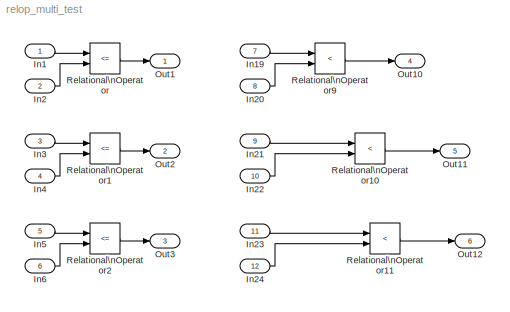
MODEL relop_multi_test
KIND model
BLOCK [Inport] In1
  IconDisplay = Port number
  OutDataTypeStr = double
  PortDimensions = 3
  SID = 1
BLOCK [Inport] In19
  IconDisplay = Port number
  OutDataTypeStr = double
  Port = 7
  PortDimensions = [2 3]
  SID = 7
BLOCK [Inport] In2
  IconDisplay = Port number
  OutDataTypeStr = double
  Port = 2
  PortDimensions = 3
  SID = 2
BLOCK [Inport] In20
  IconDisplay = Port number
  OutDataTypeStr = double
  Port = 8
  PortDimensions = 1
  SID = 8
BLOCK [Inport] In21
  IconDisplay = Port number
  OutDataTypeStr = int8
  Port = 9
  PortDimensions = 1
  SID = 9
BLOCK [Inport] In22
  IconDisplay = Port number
  OutDataTypeStr = int8
  Port = 10
  PortDimensions = [2 3]
  SID = 10
BLOCK [Inport] In23
  IconDisplay = Port number
  OutDataTypeStr = boolean
  Port = 11
  PortDimensions = [2 3]
  SID = 11
BLOCK [Inport] In24
  IconDisplay = Port number
  OutDataTypeStr = boolean
  Port = 12
  PortDimensions = [2 3]
  SID = 12
BLOCK [Inport] In3
  IconDisplay = Port number
  OutDataTypeStr = int8
  Port = 3
  PortDimensions = 3
  SID = 3
BLOCK [Inport] In4
  IconDisplay = Port number
  OutDataTypeStr = int8
  Port = 4
  PortDimensions = 1
  SID = 4
BLOCK [Inport] In5
  IconDisplay = Port number
  OutDataTypeStr = boolean
  Port = 5
  PortDimensions = 1
  SID = 5
BLOCK [Inport] In6
  IconDisplay = Port number
  OutDataTypeStr = boolean
  Port = 6
  PortDimensions = 3
  SID = 6
BLOCK [Outport] Out1
  IconDisplay = Port number
  SID = 19
BLOCK [Outport] Out10
  IconDisplay = Port number
  Port = 4
  SID = 22
BLOCK [Outport] Out11
  IconDisplay = Port number
  Port = 5
  SID = 23
BLOCK [Outport] Out12
  IconDisplay = Port number
  Port = 6
  SID = 24
BLOCK [Outport] Out2
  IconDisplay = Port number
  Port = 2
  SID = 20
BLOCK [Outport] Out3
  IconDisplay = Port number
  Port = 3
  SID = 21
BLOCK [RelationalOperator] Relational\nOperator
  InputSameDT = off
  Operator = <=
  OutDataTypeStr = boolean
  Ports = [2, 1]
  SID = 13
BLOCK [RelationalOperator] Relational\nOperator1
  InputSameDT = off
  Operator = <=
  OutDataTypeStr = boolean
  Ports = [2, 1]
  SID = 14
BLOCK [RelationalOperator] Relational\nOperator10
  InputSameDT = off
  Operator = <
  OutDataTypeStr = boolean
  Ports = [2, 1]
  SID = 15
BLOCK [RelationalOperator] Relational\nOperator11
  InputSameDT = off
  Operator = <
  OutDataTypeStr = boolean
  Ports = [2, 1]
  SID = 16
BLOCK [RelationalOperator] Relational\nOperator2
  InputSameDT = off
  Operator = <=
  OutDataTypeStr = boolean
  Ports = [2, 1]
  SID = 17
BLOCK [RelationalOperator] Relational\nOperator9
  InputSameDT = off
  Operator = <
  OutDataTypeStr = boolean
  Ports = [2, 1]
  SID = 18
LINE In19:1 -> Relational\nOperator9:1
LINE In1:1 -> Relational\nOperator:1
LINE In20:1 -> Relational\nOperator9:2
LINE In21:1 -> Relational\nOperator10:1
LINE In22:1 -> Relational\nOperator10:2
LINE In23:1 -> Relational\nOperator11:1
LINE In24:1 -> Relational\nOperator11:2
LINE In2:1 -> Relational\nOperator:2
LINE In3:1 -> Relational\nOperator1:1
LINE In4:1 -> Relational\nOperator1:2
LINE In5:1 -> Relational\nOperator2:1
LINE In6:1 -> Relational\nOperator2:2
LINE Relational\nOperator10:1 -> Out11:1
LINE Relational\nOperator11:1 -> Out12:1
LINE Relational\nOperator1:1 -> Out2:1
LINE Relational\nOperator2:1 -> Out3:1
LINE Relational\nOperator9:1 -> Out10:1
LINE Relational\nOperator:1 -> Out1:1
